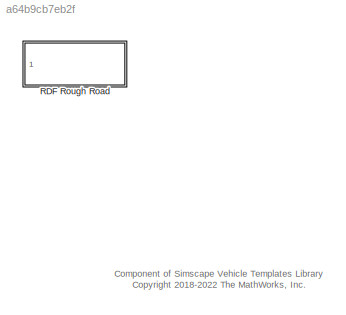
MODEL slx_a64b9cb7eb2f
KIND library
CONFIG AbsTol = auto
CONFIG EnableMultiTasking = off
CONFIG FixedStep = auto
CONFIG MaxStep = auto
CONFIG MinStep = auto
CONFIG RelTol = 1e-3
CONFIG SampleTimeConstraint = Unconstrained
CONFIG SolverName = VariableStepAuto
CONFIG StartTime = 0.0
CONFIG StopTime = 10.0
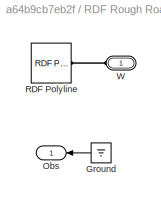
BLOCK [SubSystem] RDF Rough Road
  Ports = [0, 1, 0, 0, 0, 1]
  RequestExecContextInheritance = off
BLOCK [Ground] RDF Rough Road/Ground
  NameLocation = top
BLOCK [Outport] RDF Rough Road/Obs
  VectorParamsAs1DForOutWhenUnconnected = off
BLOCK [Reference] RDF Rough Road/RDF Polyline  REF=sm_car_lib/Environment/RDF Polyline  (lib defined in slx_05426f0848b6, slx_5dc2867fb1c9)
  Ports = [0, 0, 0, 0, 0, 0, 1]
  SourceBlock = sm_car_lib/Environment/RDF Polyline
BLOCK [PMIOPort] RDF Rough Road/W
  Side = Left
ANNOTATION (root): Component of Simscape Vehicle Templates Library <copyright redacted>
LINE RDF Rough Road/Ground:1 -> RDF Rough Road/Obs:1
PLINE RDF Rough Road/RDF Polyline:RConn1 -- RDF Rough Road/W:RConn1
